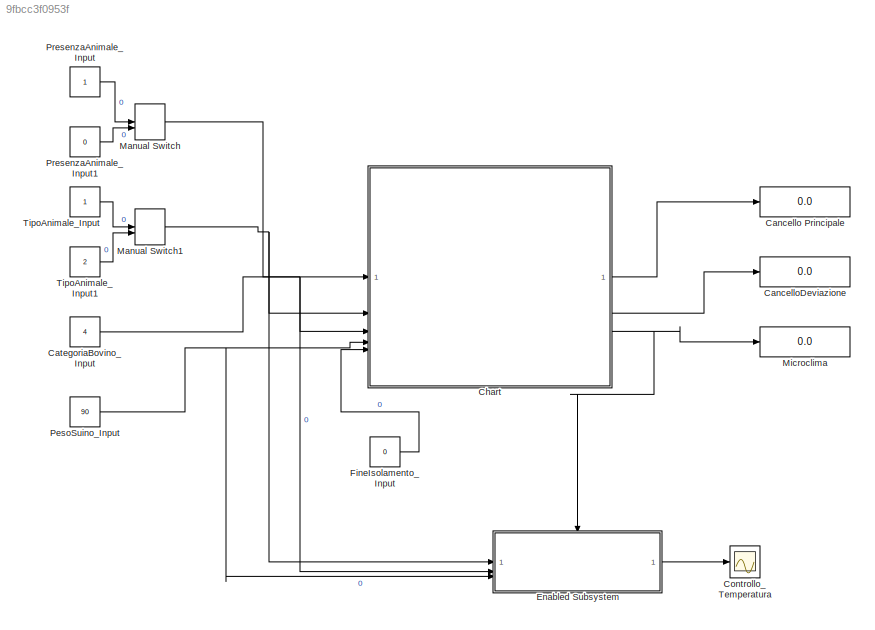
MODEL slx_9fbcc3f0953f
KIND model
CONFIG AbsTol = auto
CONFIG EnableMultiTasking = off
CONFIG FixedStep = auto
CONFIG MaxStep = auto
CONFIG MinStep = auto
CONFIG RelTol = 1e-3
CONFIG SampleTimeConstraint = Unconstrained
CONFIG SolverName = VariableStepAuto
CONFIG StartTime = 0.0
CONFIG StopTime = 86400
BLOCK [Display] Cancello Principale
  Decimation = 1
BLOCK [Display] CancelloDeviazione
  Decimation = 1
BLOCK [Constant] CategoriaBovino_Input
  OutDataTypeStr = int32
  Value = 4
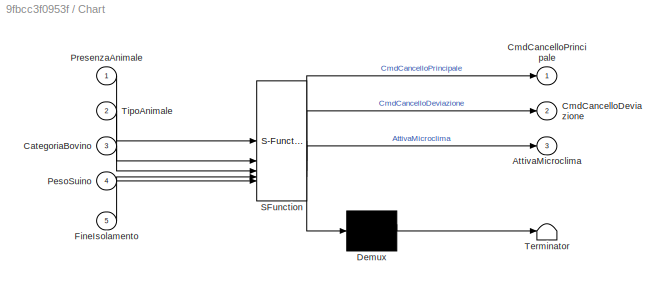
BLOCK [SubSystem] Chart
  ErrorFcn = Stateflow.Translate.translate
  PermitHierarchicalResolution = ExplicitOnly
  SFBlockType = Chart
  TreatAsAtomicUnit = on
BLOCK [Demux] Chart/ Demux 
  Outputs = 1
BLOCK [S-Function] Chart/ SFunction 
  EnableBusSupport = on
  FunctionName = sf_sfun
  PortCounts = [5 4]
  SFcnIsStateOwnerBlock = off
  SFunctionDeploymentMode = off
  Tag = Stateflow S-Function 3
BLOCK [Terminator] Chart/ Terminator 
BLOCK [Outport] Chart/AttivaMicroclima
  Port = 3
BLOCK [Inport] Chart/CategoriaBovino
  Port = 3
BLOCK [Outport] Chart/CmdCancelloDeviazione
  Port = 2
BLOCK [Outport] Chart/CmdCancelloPrincipale
BLOCK [Inport] Chart/FineIsolamento
  Port = 5
BLOCK [Inport] Chart/PesoSuino
  Port = 4
BLOCK [Inport] Chart/PresenzaAnimale
BLOCK [Inport] Chart/TipoAnimale
  Port = 2
BLOCK [Scope] Controllo_Temperatura
  Floating = off
  NumInputPorts = 1
  ScopeSpecificationString = Simulink.scopes.TimeScopeBlockCfg('CurrentConfiguration', extmgr.ConfigurationSet(extmgr.Configuration('Core','General UI',true),extmgr.Configuration('Core','Source UI',true),extmgr.Configuration('Sources','WiredSimulink',true,'DataLoggingVariableName','ScopeData1'),extmgr.Configuration('Visuals','Time Domain',true,'SerializedDisplays',{struct('MinYLimReal','-11.98532','MaxYLimReal','41.21918','YL...<+2338ch>
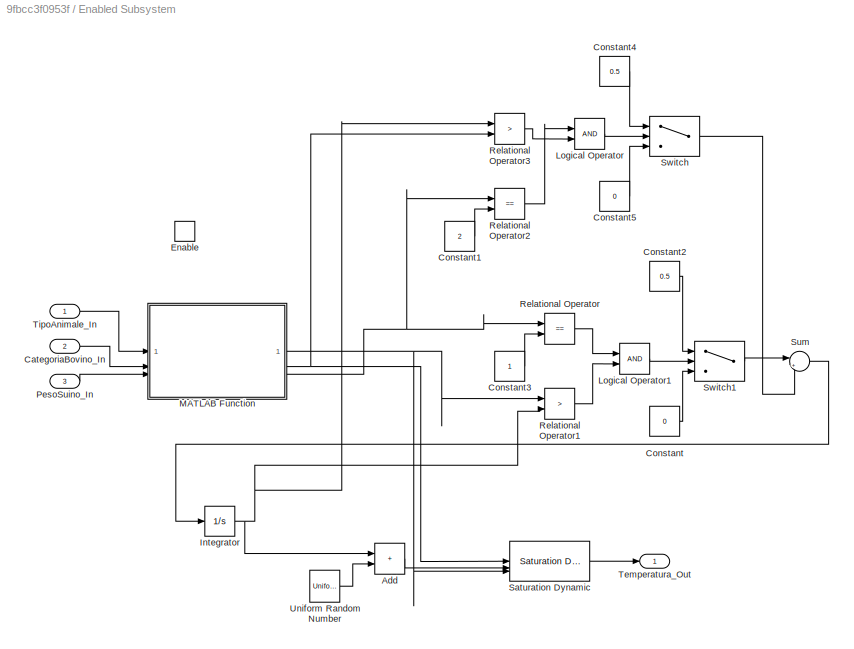
BLOCK [SubSystem] Enabled Subsystem
  TreatAsAtomicUnit = on
BLOCK [Sum] Enabled Subsystem/Add
  IconShape = rectangular
BLOCK [Inport] Enabled Subsystem/CategoriaBovino_In
  Port = 2
BLOCK [Constant] Enabled Subsystem/Constant
  Value = 0
BLOCK [Constant] Enabled Subsystem/Constant1
  Value = 2
BLOCK [Constant] Enabled Subsystem/Constant2
  Value = 0.5
BLOCK [Constant] Enabled Subsystem/Constant3
BLOCK [Constant] Enabled Subsystem/Constant4
  Value = 0.5
BLOCK [Constant] Enabled Subsystem/Constant5
  Value = 0
BLOCK [EnablePort] Enabled Subsystem/Enable
BLOCK [Integrator] Enabled Subsystem/Integrator
  InitialCondition = 20
BLOCK [Logic] Enabled Subsystem/Logical Operator
  AllPortsSameDT = off
  OutDataTypeStr = boolean
BLOCK [Logic] Enabled Subsystem/Logical Operator1
  AllPortsSameDT = off
  OutDataTypeStr = boolean
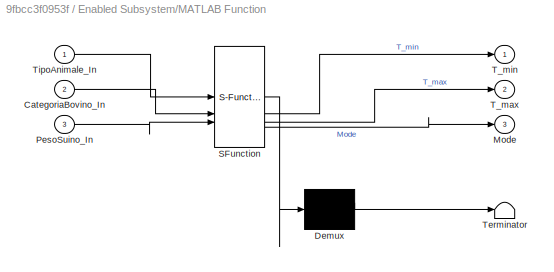
BLOCK [SubSystem] Enabled Subsystem/MATLAB Function
  ErrorFcn = Stateflow.Translate.translate
  PermitHierarchicalResolution = ExplicitOnly
  SFBlockType = MATLAB Function
  TreatAsAtomicUnit = on
BLOCK [Demux] Enabled Subsystem/MATLAB Function/ Demux 
  Outputs = 1
BLOCK [S-Function] Enabled Subsystem/MATLAB Function/ SFunction 
  EnableBusSupport = on
  FunctionName = sf_sfun
  PortCounts = [3 4]
  SFcnIsStateOwnerBlock = off
  SFunctionDeploymentMode = off
  Tag = Stateflow S-Function 2
BLOCK [Terminator] Enabled Subsystem/MATLAB Function/ Terminator 
BLOCK [Inport] Enabled Subsystem/MATLAB Function/CategoriaBovino_In
  Port = 2
BLOCK [Outport] Enabled Subsystem/MATLAB Function/Mode
  Port = 3
BLOCK [Inport] Enabled Subsystem/MATLAB Function/PesoSuino_In
  Port = 3
BLOCK [Outport] Enabled Subsystem/MATLAB Function/T_max
  Port = 2
BLOCK [Outport] Enabled Subsystem/MATLAB Function/T_min
BLOCK [Inport] Enabled Subsystem/MATLAB Function/TipoAnimale_In
BLOCK [Inport] Enabled Subsystem/PesoSuino_In
  Port = 3
BLOCK [RelationalOperator] Enabled Subsystem/Relational Operator
  InputSameDT = off
  Operator = ==
  OutDataTypeStr = boolean
  RndMeth = Simplest
BLOCK [RelationalOperator] Enabled Subsystem/Relational Operator1
  InputSameDT = off
  Operator = >
  OutDataTypeStr = boolean
  RndMeth = Simplest
BLOCK [RelationalOperator] Enabled Subsystem/Relational Operator2
  InputSameDT = off
  Operator = ==
  OutDataTypeStr = boolean
  RndMeth = Simplest
BLOCK [RelationalOperator] Enabled Subsystem/Relational Operator3
  InputSameDT = off
  Operator = >
  OutDataTypeStr = boolean
  RndMeth = Simplest
BLOCK [Reference] Enabled Subsystem/Saturation Dynamic  REF=simulink/Discontinuities/Saturation
Dynamic
  SourceBlock = simulink/Discontinuities/Saturation\nDynamic
  SourceType = Saturation Dynamic
BLOCK [Sum] Enabled Subsystem/Sum
  Inputs = |+-
BLOCK [Switch] Enabled Subsystem/Switch
  Criteria = u2 > Threshold
  InputSameDT = off
  SaturateOnIntegerOverflow = off
BLOCK [Switch] Enabled Subsystem/Switch1
  Criteria = u2 > Threshold
  InputSameDT = off
  SaturateOnIntegerOverflow = off
BLOCK [Outport] Enabled Subsystem/Temperatura_Out
  InitialOutput = 20
BLOCK [Inport] Enabled Subsystem/TipoAnimale_In
BLOCK [UniformRandomNumber] Enabled Subsystem/Uniform Random Number
  SampleTime = 1800
BLOCK [Constant] FineIsolamento_Input
  OutDataTypeStr = boolean
  Value = 0
BLOCK [ManualSwitch] Manual Switch
BLOCK [ManualSwitch] Manual Switch1
  CurrentSetting = 0
BLOCK [Display] Microclima
  Decimation = 1
BLOCK [Constant] PesoSuino_Input
  Value = 90
BLOCK [Constant] PresenzaAnimale_Input
  OutDataTypeStr = boolean
BLOCK [Constant] PresenzaAnimale_Input1
  OutDataTypeStr = boolean
  Value = 0
BLOCK [Constant] TipoAnimale_Input
  OutDataTypeStr = int32
BLOCK [Constant] TipoAnimale_Input1
  OutDataTypeStr = int32
  Value = 2
NET CategoriaBovino_Input:1 -> Chart:3, Enabled Subsystem:2
LINE Chart:1 -> Cancello Principale:1
LINE Chart:2 -> CancelloDeviazione:1
NET Chart:3 -> Enabled Subsystem:enable, Microclima:1
LINE Enabled Subsystem/Add:1 -> Enabled Subsystem/Saturation Dynamic:2
LINE Enabled Subsystem/CategoriaBovino_In:1 -> Enabled Subsystem/MATLAB Function:2
LINE Enabled Subsystem/Constant1:1 -> Enabled Subsystem/Relational Operator2:2
LINE Enabled Subsystem/Constant2:1 -> Enabled Subsystem/Switch1:1
LINE Enabled Subsystem/Constant3:1 -> Enabled Subsystem/Relational Operator:2
LINE Enabled Subsystem/Constant4:1 -> Enabled Subsystem/Switch:1
LINE Enabled Subsystem/Constant5:1 -> Enabled Subsystem/Switch:3
LINE Enabled Subsystem/Constant:1 -> Enabled Subsystem/Switch1:3
NET Enabled Subsystem/Integrator:1 -> Enabled Subsystem/Add:1, Enabled Subsystem/Relational Operator1:2, Enabled Subsystem/Relational Operator3:1
LINE Enabled Subsystem/Logical Operator1:1 -> Enabled Subsystem/Switch1:2
LINE Enabled Subsystem/Logical Operator:1 -> Enabled Subsystem/Switch:2
NET Enabled Subsystem/MATLAB Function:1 -> Enabled Subsystem/Relational Operator1:1, Enabled Subsystem/Saturation Dynamic:3
NET Enabled Subsystem/MATLAB Function:2 -> Enabled Subsystem/Relational Operator3:2, Enabled Subsystem/Saturation Dynamic:1
NET Enabled Subsystem/MATLAB Function:3 -> Enabled Subsystem/Relational Operator2:1, Enabled Subsystem/Relational Operator:1
LINE Enabled Subsystem/PesoSuino_In:1 -> Enabled Subsystem/MATLAB Function:3
LINE Enabled Subsystem/Relational Operator1:1 -> Enabled Subsystem/Logical Operator1:2
LINE Enabled Subsystem/Relational Operator2:1 -> Enabled Subsystem/Logical Operator:1
LINE Enabled Subsystem/Relational Operator3:1 -> Enabled Subsystem/Logical Operator:2
LINE Enabled Subsystem/Relational Operator:1 -> Enabled Subsystem/Logical Operator1:1
LINE Enabled Subsystem/Saturation Dynamic:1 -> Enabled Subsystem/Temperatura_Out:1
LINE Enabled Subsystem/Sum:1 -> Enabled Subsystem/Integrator:1
LINE Enabled Subsystem/Switch1:1 -> Enabled Subsystem/Sum:1
LINE Enabled Subsystem/Switch:1 -> Enabled Subsystem/Sum:2
LINE Enabled Subsystem/TipoAnimale_In:1 -> Enabled Subsystem/MATLAB Function:1
LINE Enabled Subsystem/Uniform Random Number:1 -> Enabled Subsystem/Add:2
LINE Enabled Subsystem:1 -> Controllo_Temperatura:1
LINE FineIsolamento_Input:1 -> Chart:5
NET Manual Switch1:1 -> Chart:2, Enabled Subsystem:1
LINE Manual Switch:1 -> Chart:1
NET PesoSuino_Input:1 -> Chart:4, Enabled Subsystem:3
LINE PresenzaAnimale_Input1:1 -> Manual Switch:2
LINE PresenzaAnimale_Input:1 -> Manual Switch:1
LINE TipoAnimale_Input1:1 -> Manual Switch1:2
LINE TipoAnimale_Input:1 -> Manual Switch1:1
note: NET lines group one-source signal fan-out (src -> all destinations, sorted); 1:1 wires keep LINE
CHART Enabled
Subsystem/MATLAB Function states=1 transitions=1
  STATE_LABEL 'eML_blk_kernel()'
  STATE_LABEL 'SCRIPT:\nfunction [T_min, T_max, Mode] = Controllo_Climatico(TipoAnimale_In, CategoriaBovino_In, PesoSuino_In)\n    % comandi spenti\n    T_min = 30;\n    T_max = 30;\n    Mode = 0;\n\n    % logica bovini\n    if TipoAnimale_In == 1\n        if CategoriaBovino_In == 1 || CategoriaBovino_In == 2 || CategoriaBovino_In == 3\n            T_min = -6;\n            T_max = -4;\n            Mode = 2;\n        elseif C...<+386ch>'
CHART Chart states=7 transitions=7
  STATE_LABEL 'ATTESA\nentry:\nCmdCancelloPrincipale = true;\nCmdCancelloDeviazione = false;\nAttivaMicroclima = false;\n'
  STATE_LABEL 'inLista = IsBovinoInLista'
  STATE_LABEL "SCRIPT:\nfunction inLista = IsBovinoInLista()\n    % Variabili di input\n    coder.extrinsic('TipoAnimale', 'CategoriaBovino');\n\n    inLista = false; % Default\n\n    if TipoAnimale == 1 % È un bovino\n        if CategoriaBovino == 1 || ... % Alta Produzione\n           CategoriaBovino == 2 || ... % Post-Parto\n           CategoriaBovino == 3 || ... % Gravidanza\n           CategoriaBovino == 4        % Vi...<+69ch>"
  STATE_LABEL 'inLista = IsSuinoInLista'
  STATE_LABEL "SCRIPT:\nfunction inLista = IsSuinoInLista()\n    coder.extrinsic('TipoAnimale', 'PesoSuino');\n\n    inLista = false; % Default\n\n    if TipoAnimale == 2 % È un suino\n        % Condizioni: < 50 kg oppure > 85 kg\n        if PesoSuino < 50.0 || PesoSuino > 85.0 \n            inLista = true;\n        end\n    end\nend"
  STATE_LABEL 'ISOLAMENTO\nexit:\nCmdCancelloDeviazione = false;\nAttivaMicroclima = false;'
  STATE_LABEL 'IDENTIFICAZIONE'
  STATE_LABEL 'PASSAGGIO\nentry:\nCmdCancelloPrincipale = true;'
  STATE_LABEL 'DECISIONE'
CHART  states=0 transitions=0
CHART  states=0 transitions=0
